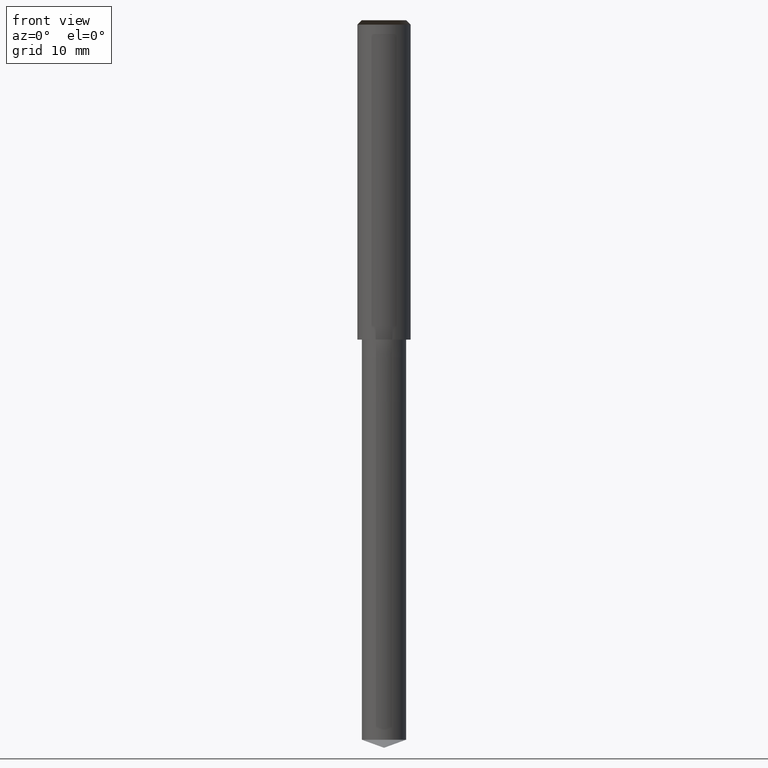
[diagram: clean part render]
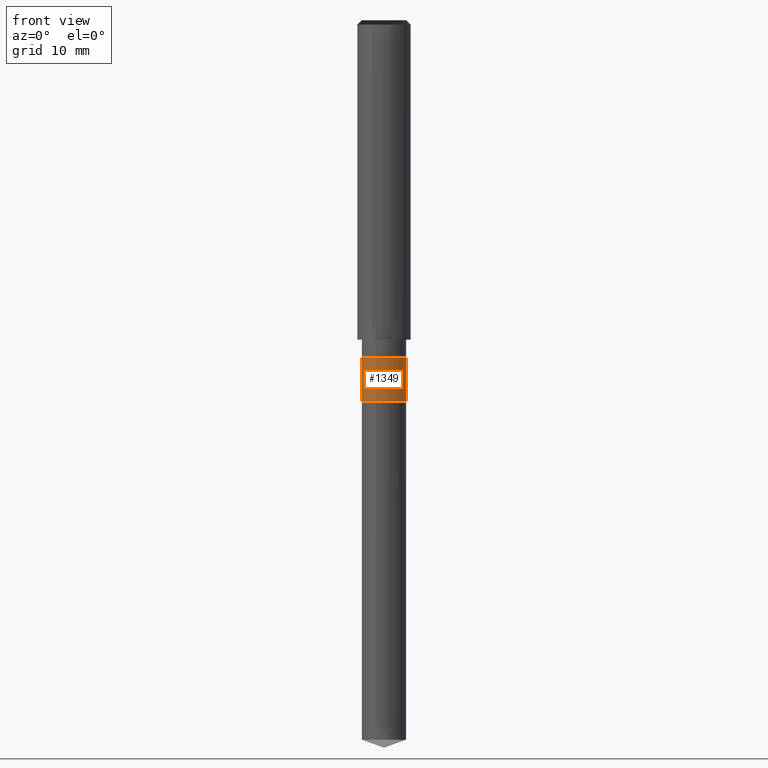
[diagram: same view with one face highlighted and labeled with its STEP entity id]
A machine part, front view. The second image highlights one B-rep face of the part: STEP entity #1349.
In plain terms, the highlighted face is a freeform B-spline surface patch.
Its self-contained STEP definition (entity closure, byte-faithful):
#1016=CARTESIAN_POINT('',(2.5,0.0,-7.0));
#1020=CARTESIAN_POINT('',(-2.5,0.0,-7.0));
#1025=CARTESIAN_POINT('',(-2.5,-2.5,-7.0));
#1026=CARTESIAN_POINT('',(0.0,-2.5,-7.0));
#1027=CARTESIAN_POINT('',(2.5,-2.5,-7.0));
#1028=CARTESIAN_POINT('',(2.5,0.0,-2.0));
#1032=CARTESIAN_POINT('',(-2.5,0.0,-2.0));
#1054=CARTESIAN_POINT('',(-2.5,-2.5,-2.0));
#1055=CARTESIAN_POINT('',(0.0,-2.5,-2.0));
#1056=CARTESIAN_POINT('',(2.5,-2.5,-2.0));
#1330=(
BOUNDED_SURFACE()
B_SPLINE_SURFACE(1,2,(
(#1020,#1025,#1026,#1027,#1016),
(#1032,#1054,#1055,#1056,#1028)
), .UNSPECIFIED.,.F.,.F.,.F.)
B_SPLINE_SURFACE_WITH_KNOTS((2,2),(3,2,3),(
0.0,1.0),(
0.0,0.5,1.0), .UNSPECIFIED.)
GEOMETRIC_REPRESENTATION_ITEM()
RATIONAL_B_SPLINE_SURFACE(((1.0,0.707106781187,1.0,0.707106781187,1.0),
(1.0,0.707106781187,1.0,0.707106781187,1.0)
))
REPRESENTATION_ITEM('')
SURFACE()
);
#1331=(
BOUNDED_CURVE()
B_SPLINE_CURVE(2,(#1016,#1027,#1026,#1025,#1020),.UNSPECIFIED.,.F.,.F.)
B_SPLINE_CURVE_WITH_KNOTS((3,2,3),
(0.0,0.5,1.0),.UNSPECIFIED.)
CURVE()
GEOMETRIC_REPRESENTATION_ITEM()
RATIONAL_B_SPLINE_CURVE((1.0,0.707106781187,1.0,0.707106781187,1.0))
REPRESENTATION_ITEM('')
);
#1332=(
BOUNDED_CURVE()
B_SPLINE_CURVE(1,(#1020,#1032),.UNSPECIFIED.,.F.,.F.)
B_SPLINE_CURVE_WITH_KNOTS((2,2),
(0.0,1.0),.UNSPECIFIED.)
CURVE()
GEOMETRIC_REPRESENTATION_ITEM()
RATIONAL_B_SPLINE_CURVE((1.0,1.0))
REPRESENTATION_ITEM('')
);
#1333=(
BOUNDED_CURVE()
B_SPLINE_CURVE(2,(#1032,#1054,#1055,#1056,#1028),.UNSPECIFIED.,.F.,.F.)
B_SPLINE_CURVE_WITH_KNOTS((3,2,3),
(0.0,0.5,1.0),.UNSPECIFIED.)
CURVE()
GEOMETRIC_REPRESENTATION_ITEM()
RATIONAL_B_SPLINE_CURVE((1.0,0.707106781187,1.0,0.707106781187,1.0))
REPRESENTATION_ITEM('')
);
#1334=(
BOUNDED_CURVE()
B_SPLINE_CURVE(1,(#1028,#1016),.UNSPECIFIED.,.F.,.F.)
B_SPLINE_CURVE_WITH_KNOTS((2,2),
(0.0,1.0),.UNSPECIFIED.)
CURVE()
GEOMETRIC_REPRESENTATION_ITEM()
RATIONAL_B_SPLINE_CURVE((1.0,1.0))
REPRESENTATION_ITEM('')
);
#1335=VERTEX_POINT('',#1016);
#1336=VERTEX_POINT('',#1020);
#1337=VERTEX_POINT('',#1028);
#1338=VERTEX_POINT('',#1032);
#1339=EDGE_CURVE('',#1335,#1336,#1331,.T.);
#1340=EDGE_CURVE('',#1336,#1338,#1332,.T.);
#1341=EDGE_CURVE('',#1338,#1337,#1333,.T.);
#1342=EDGE_CURVE('',#1337,#1335,#1334,.T.);
#1343=ORIENTED_EDGE('',*,*,#1339,.T.);
#1344=ORIENTED_EDGE('',*,*,#1340,.T.);
#1345=ORIENTED_EDGE('',*,*,#1341,.T.);
#1346=ORIENTED_EDGE('',*,*,#1342,.T.);
#1347=EDGE_LOOP('',(#1343,#1344,#1345,#1346));
#1348=FACE_OUTER_BOUND('',#1347,.T.);
#1349=ADVANCED_FACE('',(#1348),#1330,.T.);